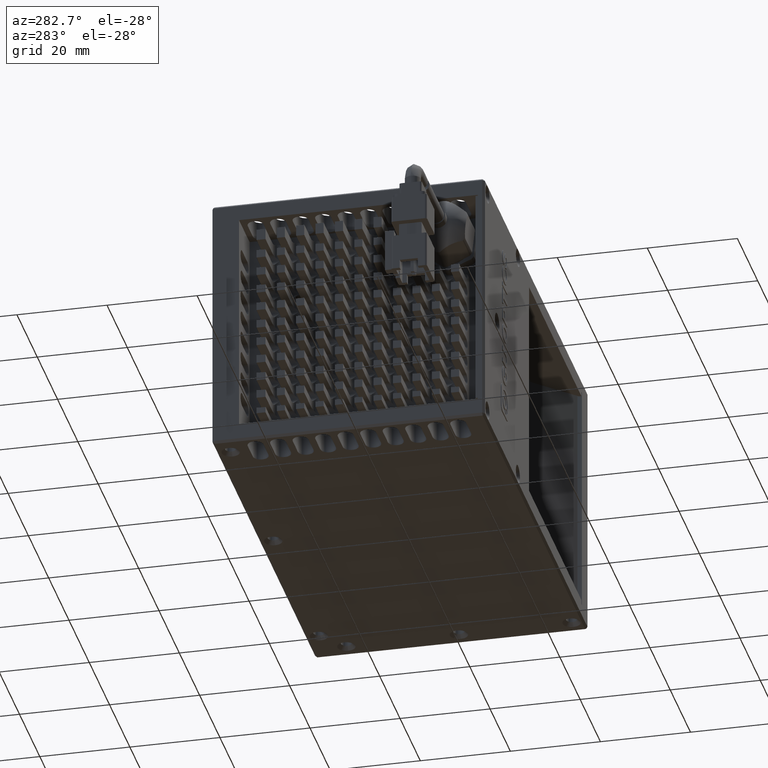
[diagram: clean part render]
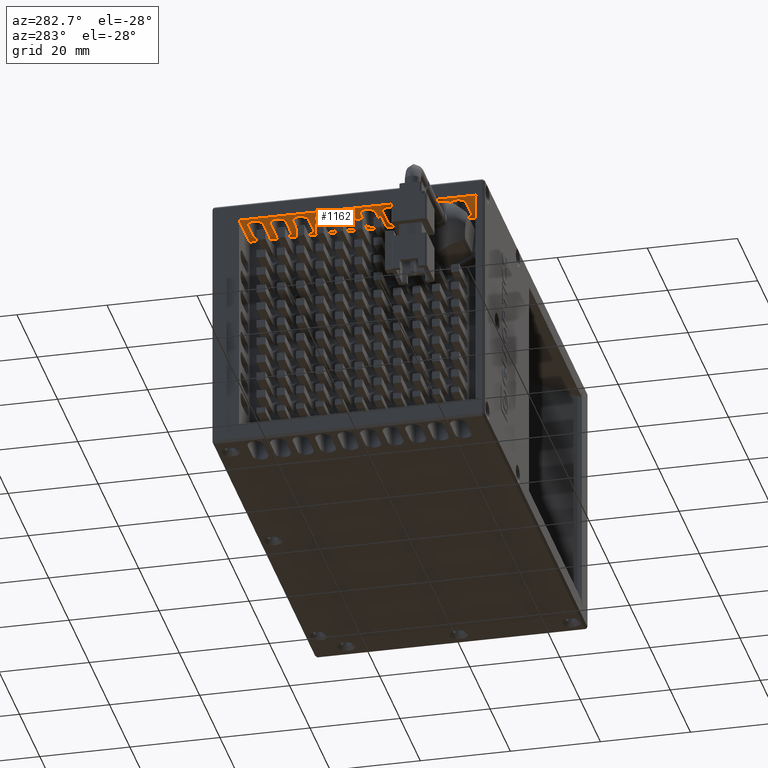
[diagram: same view with one face highlighted and labeled with its STEP entity id]
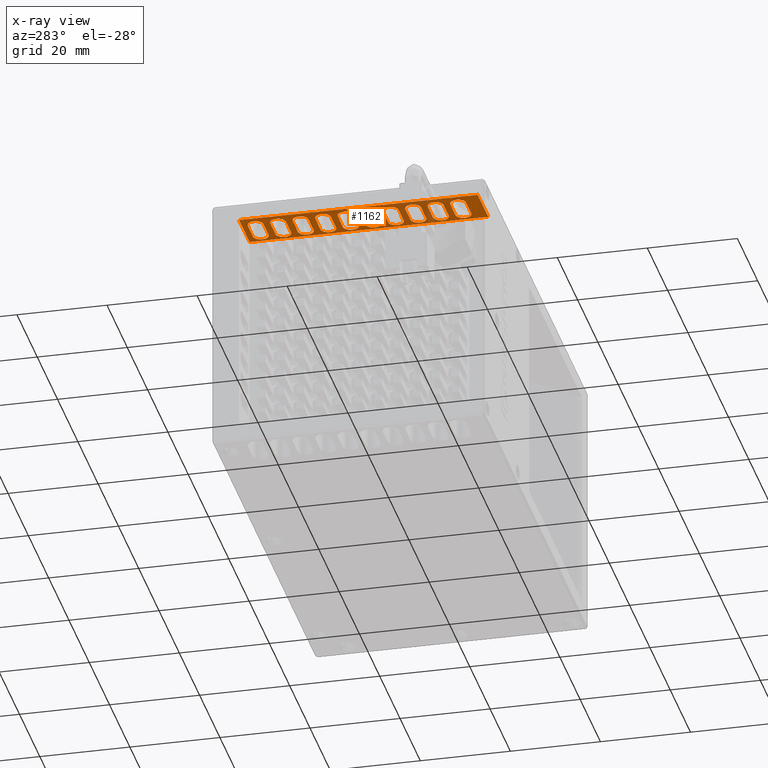
[diagram: x-ray of the same camera — body ghosted, the highlighted face saturated]
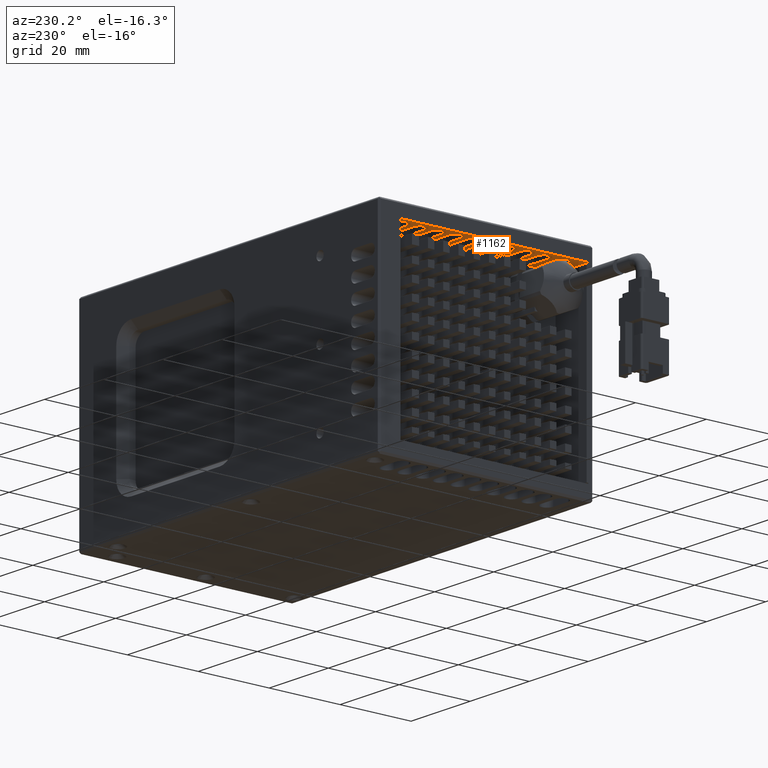
[diagram: same view with one face highlighted and labeled with its STEP entity id]
A machine part, auxiliary view. The second image highlights one B-rep face of the part: STEP entity #1162.
The next image is the same camera in x-ray: the body ghosted, the highlighted face saturated — about 18% of this face is hidden behind the body in this view.
A second angle (auxiliary view) of the same face is appended — the face is thin or edge-on in the first view.
In plain terms, the highlighted planar face has unit normal (0, 0, -1).
Its self-contained STEP definition (entity closure, byte-faithful):
#92 = VECTOR ( 'NONE', #55224, 1000.000000000000000 ) ;
#162 = EDGE_CURVE ( 'NONE', #46251, #3177, #65039, .T. ) ;
#556 = DIRECTION ( 'NONE',  ( 1.000000000000000000, 0.0000000000000000000, 0.0000000000000000000 ) ) ;
#750 = CARTESIAN_POINT ( 'NONE',  ( -60.57424922391150800, 3.775993330902633400, 54.00000000000955700 ) ) ;
#755 = DIRECTION ( 'NONE',  ( -0.0000000000000000000, -0.0000000000000000000, 1.000000000000000000 ) ) ;
#770 = EDGE_CURVE ( 'NONE', #33114, #41457, #68127, .T. ) ;
#849 = ORIENTED_EDGE ( 'NONE', *, *, #47016, .T. ) ;
#952 = DIRECTION ( 'NONE',  ( -0.0000000000000000000, -0.0000000000000000000, 1.000000000000000000 ) ) ;
#1162 = ADVANCED_FACE ( 'NONE', ( #10083, #49115, #6793, #61521, #47455, #33357, #19171, #5116, #59870, #45797, #31670 ), #15006, .T. ) ;
#1447 = ORIENTED_EDGE ( 'NONE', *, *, #60256, .T. ) ;
#1538 = LINE ( 'NONE', #41669, #13909 ) ;
#1772 = ORIENTED_EDGE ( 'NONE', *, *, #13327, .T. ) ;
#1782 = VECTOR ( 'NONE', #1951, 1000.000000000000000 ) ;
#1816 = DIRECTION ( 'NONE',  ( 1.000000000000000000, 0.0000000000000000000, 0.0000000000000000000 ) ) ;
#1896 = ORIENTED_EDGE ( 'NONE', *, *, #42364, .T. ) ;
#1951 = DIRECTION ( 'NONE',  ( -1.000000000000000000, -0.0000000000000000000, 0.0000000000000000000 ) ) ;
#2141 = CARTESIAN_POINT ( 'NONE',  ( -60.57424922391150800, 23.77599333090263700, 54.00000000000955700 ) ) ;
#2358 = VERTEX_POINT ( 'NONE', #63997 ) ;
#2552 = AXIS2_PLACEMENT_3D ( 'NONE', #2141, #39285, #7494 ) ;
#2744 = CIRCLE ( 'NONE', #25119, 1.750000000000001600 ) ;
#2894 = CARTESIAN_POINT ( 'NONE',  ( -60.57424922391149400, -2.974006669097364800, 54.00000000000955700 ) ) ;
#2903 = EDGE_CURVE ( 'NONE', #13150, #64976, #50575, .T. ) ;
#3177 = VERTEX_POINT ( 'NONE', #2894 ) ;
#3191 = DIRECTION ( 'NONE',  ( 1.000000000000000000, 0.0000000000000000000, 0.0000000000000000000 ) ) ;
#3242 = ORIENTED_EDGE ( 'NONE', *, *, #2903, .T. ) ;
#3325 = ORIENTED_EDGE ( 'NONE', *, *, #48502, .T. ) ;
#3752 = DIRECTION ( 'NONE',  ( -0.0000000000000000000, -0.0000000000000000000, 1.000000000000000000 ) ) ;
#3849 = DIRECTION ( 'NONE',  ( 1.000000000000000000, 0.0000000000000000000, 0.0000000000000000000 ) ) ;
#4044 = VERTEX_POINT ( 'NONE', #45313 ) ;
#4165 = VERTEX_POINT ( 'NONE', #4249 ) ;
#4176 = ORIENTED_EDGE ( 'NONE', *, *, #58352, .T. ) ;
#4249 = CARTESIAN_POINT ( 'NONE',  ( -65.57424922391152200, 30.52599333090263700, 54.00000000000955700 ) ) ;
#4355 = CARTESIAN_POINT ( 'NONE',  ( -65.57424922391152200, 28.77599333090263700, 54.00000000000955700 ) ) ;
#4575 = CARTESIAN_POINT ( 'NONE',  ( -65.57424922391152200, 2.025993330902632100, 54.00000000000955700 ) ) ;
#4594 = DIRECTION ( 'NONE',  ( 0.0000000000000000000, 0.0000000000000000000, -1.000000000000000000 ) ) ;
#4715 = DIRECTION ( 'NONE',  ( -0.0000000000000000000, -0.0000000000000000000, 1.000000000000000000 ) ) ;
#4882 = VERTEX_POINT ( 'NONE', #68527 ) ;
#4942 = DIRECTION ( 'NONE',  ( -0.0000000000000000000, -0.0000000000000000000, 1.000000000000000000 ) ) ;
#5116 = FACE_BOUND ( 'NONE', #5604, .T. ) ;
#5208 = VECTOR ( 'NONE', #46472, 1000.000000000000000 ) ;
#5211 = LINE ( 'NONE', #48579, #45878 ) ;
#5286 = CARTESIAN_POINT ( 'NONE',  ( -60.57424922391150800, 25.52599333090264000, 54.00000000000955700 ) ) ;
#5307 = VERTEX_POINT ( 'NONE', #51940 ) ;
#5445 = VECTOR ( 'NONE', #30094, 1000.000000000000000 ) ;
#5604 = EDGE_LOOP ( 'NONE', ( #24495, #51514, #14031, #27852, #51115 ) ) ;
#5738 = EDGE_CURVE ( 'NONE', #24772, #67314, #60183, .T. ) ;
#5892 = CARTESIAN_POINT ( 'NONE',  ( -65.57424922391152200, 8.775993330902631200, 54.00000000000955700 ) ) ;
#6061 = VECTOR ( 'NONE', #37626, 1000.000000000000000 ) ;
#6085 = DIRECTION ( 'NONE',  ( 1.000000000000000000, 0.0000000000000000000, 0.0000000000000000000 ) ) ;
#6143 = CARTESIAN_POINT ( 'NONE',  ( -60.57424922391150800, 17.02599333090263700, 54.00000000000955700 ) ) ;
#6376 = DIRECTION ( 'NONE',  ( 1.000000000000000000, 0.0000000000000000000, 0.0000000000000000000 ) ) ;
#6406 = CARTESIAN_POINT ( 'NONE',  ( -65.57424922391152200, 13.77599333090263500, 54.00000000000955700 ) ) ;
#6421 = CARTESIAN_POINT ( 'NONE',  ( -60.57424922391149400, -1.224006669097364100, 54.00000000000955700 ) ) ;
#6452 = DIRECTION ( 'NONE',  ( -0.0000000000000000000, -0.0000000000000000000, 1.000000000000000000 ) ) ;
#6607 = EDGE_CURVE ( 'NONE', #15134, #62806, #9309, .T. ) ;
#6793 = FACE_BOUND ( 'NONE', #46716, .T. ) ;
#6845 = VERTEX_POINT ( 'NONE', #33925 ) ;
#7494 = DIRECTION ( 'NONE',  ( 1.000000000000000000, 0.0000000000000000000, 0.0000000000000000000 ) ) ;
#7506 = DIRECTION ( 'NONE',  ( -0.0000000000000000000, -0.0000000000000000000, 1.000000000000000000 ) ) ;
#7588 = EDGE_CURVE ( 'NONE', #4882, #31464, #43205, .T. ) ;
#7693 = LINE ( 'NONE', #63781, #6061 ) ;
#7844 = VERTEX_POINT ( 'NONE', #15259 ) ;
#8079 = ORIENTED_EDGE ( 'NONE', *, *, #21309, .T. ) ;
#8505 = VERTEX_POINT ( 'NONE', #11733 ) ;
#8855 = DIRECTION ( 'NONE',  ( -0.0000000000000000000, -0.0000000000000000000, 1.000000000000000000 ) ) ;
#9309 = CIRCLE ( 'NONE', #51995, 1.750000000000001600 ) ;
#9547 = CARTESIAN_POINT ( 'NONE',  ( -60.57424922391150800, 27.02599333090263300, 54.00000000000955700 ) ) ;
#9590 = VERTEX_POINT ( 'NONE', #28803 ) ;
#9629 = CARTESIAN_POINT ( 'NONE',  ( -65.57424922391152200, 3.775993330902633400, 54.00000000000955700 ) ) ;
#9638 = DIRECTION ( 'NONE',  ( 1.000000000000000000, 0.0000000000000000000, 0.0000000000000000000 ) ) ;
#9748 = VERTEX_POINT ( 'NONE', #67477 ) ;
#9877 = VERTEX_POINT ( 'NONE', #53822 ) ;
#9892 = ORIENTED_EDGE ( 'NONE', *, *, #37265, .T. ) ;
#9993 = ORIENTED_EDGE ( 'NONE', *, *, #5738, .T. ) ;
#10083 = FACE_OUTER_BOUND ( 'NONE', #28876, .T. ) ;
#10182 = VERTEX_POINT ( 'NONE', #24403 ) ;
#10543 = AXIS2_PLACEMENT_3D ( 'NONE', #66684, #34982, #3191 ) ;
#10604 = DIRECTION ( 'NONE',  ( -1.000000000000000000, -0.0000000000000000000, 0.0000000000000000000 ) ) ;
#10768 = AXIS2_PLACEMENT_3D ( 'NONE', #28780, #65860, #34152 ) ;
#11105 = VERTEX_POINT ( 'NONE', #60944 ) ;
#11179 = AXIS2_PLACEMENT_3D ( 'NONE', #52334, #20526, #57642 ) ;
#11209 = DIRECTION ( 'NONE',  ( 1.000000000000000000, 0.0000000000000000000, 0.0000000000000000000 ) ) ;
#11383 = VERTEX_POINT ( 'NONE', #67325 ) ;
#11420 = CIRCLE ( 'NONE', #45217, 1.750000000000001600 ) ;
#11500 = AXIS2_PLACEMENT_3D ( 'NONE', #64073, #32374, #556 ) ;
#11534 = CIRCLE ( 'NONE', #2552, 1.750000000000001600 ) ;
#11570 = VERTEX_POINT ( 'NONE', #32852 ) ;
#11619 = EDGE_CURVE ( 'NONE', #7844, #6845, #37676, .T. ) ;
#11733 = CARTESIAN_POINT ( 'NONE',  ( -60.57424922391149400, 0.5259933309026392200, 54.00000000000955700 ) ) ;
#11748 = DIRECTION ( 'NONE',  ( 1.000000000000000000, 0.0000000000000000000, 0.0000000000000000000 ) ) ;
#11835 = DIRECTION ( 'NONE',  ( -0.0000000000000000000, -0.0000000000000000000, 1.000000000000000000 ) ) ;
#12061 = VERTEX_POINT ( 'NONE', #16926 ) ;
#12164 = VECTOR ( 'NONE', #51897, 1000.000000000000000 ) ;
#12494 = CARTESIAN_POINT ( 'NONE',  ( -60.57424922391152200, 42.02599333090263700, 54.00000000000955700 ) ) ;
#12497 = DIRECTION ( 'NONE',  ( 1.000000000000000000, 0.0000000000000000000, 0.0000000000000000000 ) ) ;
#12558 = CIRCLE ( 'NONE', #48101, 1.750000000000001600 ) ;
#12652 = DIRECTION ( 'NONE',  ( 1.000000000000000000, 0.0000000000000000000, 0.0000000000000000000 ) ) ;
#12659 = VERTEX_POINT ( 'NONE', #43810 ) ;
#12810 = DIRECTION ( 'NONE',  ( -0.0000000000000000000, -0.0000000000000000000, 1.000000000000000000 ) ) ;
#12877 = CIRCLE ( 'NONE', #65685, 1.750000000000001600 ) ;
#13150 = VERTEX_POINT ( 'NONE', #53403 ) ;
#13155 = CARTESIAN_POINT ( 'NONE',  ( -60.57424922391150800, 10.52599333090263300, 54.00000000000955700 ) ) ;
#13327 = EDGE_CURVE ( 'NONE', #14234, #15134, #22971, .T. ) ;
#13418 = AXIS2_PLACEMENT_3D ( 'NONE', #6406, #44455, #12652 ) ;
#13465 = VECTOR ( 'NONE', #26702, 1000.000000000000000 ) ;
#13480 = CARTESIAN_POINT ( 'NONE',  ( -65.57424922391152200, 20.52599333090263300, 54.00000000000955700 ) ) ;
#13557 = VECTOR ( 'NONE', #49598, 1000.000000000000000 ) ;
#13666 = CARTESIAN_POINT ( 'NONE',  ( -65.57424922391152200, 33.77599333090262900, 54.00000000000955700 ) ) ;
#13812 = EDGE_LOOP ( 'NONE', ( #9892, #49904, #23942, #8079, #35286 ) ) ;
#13909 = VECTOR ( 'NONE', #25837, 1000.000000000000000 ) ;
#14031 = ORIENTED_EDGE ( 'NONE', *, *, #11619, .T. ) ;
#14134 = CIRCLE ( 'NONE', #13418, 1.750000000000001600 ) ;
#14234 = VERTEX_POINT ( 'NONE', #13155 ) ;
#14313 = AXIS2_PLACEMENT_3D ( 'NONE', #17408, #54511, #22720 ) ;
#14363 = EDGE_CURVE ( 'NONE', #4165, #16961, #12558, .T. ) ;
#14533 = ORIENTED_EDGE ( 'NONE', *, *, #20422, .T. ) ;
#14613 = EDGE_CURVE ( 'NONE', #59057, #29394, #14134, .T. ) ;
#14632 = CARTESIAN_POINT ( 'NONE',  ( -60.57424922391150800, 8.775993330902631200, 54.00000000000955700 ) ) ;
#14752 = ORIENTED_EDGE ( 'NONE', *, *, #34218, .T. ) ;
#14955 = DIRECTION ( 'NONE',  ( 1.000000000000000000, 0.0000000000000000000, 0.0000000000000000000 ) ) ;
#15006 = PLANE ( 'NONE',  #66573 ) ;
#15013 = VERTEX_POINT ( 'NONE', #42783 ) ;
#15050 = VERTEX_POINT ( 'NONE', #27454 ) ;
#15134 = VERTEX_POINT ( 'NONE', #33478 ) ;
#15259 = CARTESIAN_POINT ( 'NONE',  ( -60.57424922391150800, 12.02599333090263300, 54.00000000000955700 ) ) ;
#15271 = VERTEX_POINT ( 'NONE', #13480 ) ;
#15393 = ORIENTED_EDGE ( 'NONE', *, *, #66531, .T. ) ;
#15704 = ORIENTED_EDGE ( 'NONE', *, *, #48024, .T. ) ;
#16078 = CARTESIAN_POINT ( 'NONE',  ( -60.57424922391150800, 25.52599333090264000, 54.00000000000955700 ) ) ;
#16281 = ORIENTED_EDGE ( 'NONE', *, *, #64159, .T. ) ;
#16314 = ORIENTED_EDGE ( 'NONE', *, *, #36057, .T. ) ;
#16559 = EDGE_CURVE ( 'NONE', #11105, #43934, #66894, .T. ) ;
#16662 = LINE ( 'NONE', #56751, #30805 ) ;
#16926 = CARTESIAN_POINT ( 'NONE',  ( -60.57424922391150800, 27.02599333090263300, 54.00000000000955700 ) ) ;
#16961 = VERTEX_POINT ( 'NONE', #30088 ) ;
#17066 = DIRECTION ( 'NONE',  ( 1.000000000000000000, 0.0000000000000000000, 0.0000000000000000000 ) ) ;
#17365 = VECTOR ( 'NONE', #24979, 1000.000000000000000 ) ;
#17408 = CARTESIAN_POINT ( 'NONE',  ( -65.57424922391152200, 43.77599333090263700, 54.00000000000955700 ) ) ;
#17699 = CARTESIAN_POINT ( 'NONE',  ( -60.57424922391150800, 13.77599333090263500, 54.00000000000955700 ) ) ;
#18104 = EDGE_CURVE ( 'NONE', #10182, #11105, #61542, .T. ) ;
#18134 = CARTESIAN_POINT ( 'NONE',  ( -60.57424922391149400, 0.5259933309026392200, 54.00000000000955700 ) ) ;
#18275 = CARTESIAN_POINT ( 'NONE',  ( -65.57424922391152200, 40.52599333090263700, 54.00000000000955700 ) ) ;
#18366 = VECTOR ( 'NONE', #17066, 1000.000000000000000 ) ;
#18826 = ORIENTED_EDGE ( 'NONE', *, *, #25208, .T. ) ;
#18988 = DIRECTION ( 'NONE',  ( 1.000000000000000000, 0.0000000000000000000, 0.0000000000000000000 ) ) ;
#19171 = FACE_BOUND ( 'NONE', #13812, .T. ) ;
#19633 = DIRECTION ( 'NONE',  ( 1.000000000000000000, 1.224646799147353200E-016, 0.0000000000000000000 ) ) ;
#19671 = CIRCLE ( 'NONE', #41480, 1.750000000000001600 ) ;
#19980 = DIRECTION ( 'NONE',  ( 1.000000000000000000, 0.0000000000000000000, 0.0000000000000000000 ) ) ;
#20107 = EDGE_CURVE ( 'NONE', #15013, #13150, #39776, .T. ) ;
#20110 = CARTESIAN_POINT ( 'NONE',  ( -60.57424922391152200, 32.02599333090262900, 54.00000000000955700 ) ) ;
#20422 = EDGE_CURVE ( 'NONE', #16961, #12061, #33811, .T. ) ;
#20526 = DIRECTION ( 'NONE',  ( -0.0000000000000000000, -0.0000000000000000000, 1.000000000000000000 ) ) ;
#20601 = CARTESIAN_POINT ( 'NONE',  ( -60.57424922391152200, 40.52599333090263700, 54.00000000000955700 ) ) ;
#21309 = EDGE_CURVE ( 'NONE', #37535, #15050, #36822, .T. ) ;
#21341 = CARTESIAN_POINT ( 'NONE',  ( -60.57424922391152200, 33.77599333090262900, 54.00000000000955700 ) ) ;
#22022 = CARTESIAN_POINT ( 'NONE',  ( -58.82424922391150800, 28.77599333090263700, 54.00000000000955700 ) ) ;
#22388 = VECTOR ( 'NONE', #67641, 1000.000000000000000 ) ;
#22682 = VECTOR ( 'NONE', #46634, 1000.000000000000000 ) ;
#22720 = DIRECTION ( 'NONE',  ( 1.000000000000000000, 0.0000000000000000000, 0.0000000000000000000 ) ) ;
#22871 = EDGE_CURVE ( 'NONE', #44678, #29938, #63039, .T. ) ;
#22971 = LINE ( 'NONE', #60346, #35467 ) ;
#23025 = DIRECTION ( 'NONE',  ( 1.000000000000000000, 0.0000000000000000000, 0.0000000000000000000 ) ) ;
#23453 = CARTESIAN_POINT ( 'NONE',  ( -60.57424922391152200, 45.52599333090263700, 54.00000000000955700 ) ) ;
#23719 = AXIS2_PLACEMENT_3D ( 'NONE', #6421, #43558, #11748 ) ;
#23942 = ORIENTED_EDGE ( 'NONE', *, *, #56274, .T. ) ;
#24403 = CARTESIAN_POINT ( 'NONE',  ( -65.57424922391152200, 35.52599333090262900, 54.00000000000955700 ) ) ;
#24464 = CARTESIAN_POINT ( 'NONE',  ( -60.57424922391150800, 30.52599333090263700, 54.00000000000955700 ) ) ;
#24495 = ORIENTED_EDGE ( 'NONE', *, *, #14613, .T. ) ;
#24719 = CARTESIAN_POINT ( 'NONE',  ( -60.57424922391152200, 37.02599333090262900, 54.00000000000955700 ) ) ;
#24772 = VERTEX_POINT ( 'NONE', #60384 ) ;
#24979 = DIRECTION ( 'NONE',  ( -1.000000000000000000, -0.0000000000000000000, 0.0000000000000000000 ) ) ;
#24994 = LINE ( 'NONE', #20601, #51558 ) ;
#25119 = AXIS2_PLACEMENT_3D ( 'NONE', #44610, #12810, #49912 ) ;
#25156 = AXIS2_PLACEMENT_3D ( 'NONE', #750, #37863, #6085 ) ;
#25208 = EDGE_CURVE ( 'NONE', #4044, #55205, #2744, .T. ) ;
#25474 = EDGE_LOOP ( 'NONE', ( #40541, #14533, #16281, #64113, #4176 ) ) ;
#25504 = EDGE_CURVE ( 'NONE', #55205, #68774, #24994, .T. ) ;
#25747 = DIRECTION ( 'NONE',  ( -1.000000000000000000, -0.0000000000000000000, 0.0000000000000000000 ) ) ;
#25837 = DIRECTION ( 'NONE',  ( -1.000000000000000000, -0.0000000000000000000, 0.0000000000000000000 ) ) ;
#25945 = ORIENTED_EDGE ( 'NONE', *, *, #62916, .T. ) ;
#25968 = VECTOR ( 'NONE', #12497, 1000.000000000000000 ) ;
#26686 = CARTESIAN_POINT ( 'NONE',  ( -65.57424922391152200, 17.02599333090263700, 54.00000000000955700 ) ) ;
#26702 = DIRECTION ( 'NONE',  ( -1.000000000000000000, -0.0000000000000000000, 0.0000000000000000000 ) ) ;
#26733 = DIRECTION ( 'NONE',  ( 1.000000000000000000, 0.0000000000000000000, 0.0000000000000000000 ) ) ;
#26754 = CIRCLE ( 'NONE', #11179, 1.750000000000001600 ) ;
#26986 = CIRCLE ( 'NONE', #25156, 1.750000000000001600 ) ;
#27454 = CARTESIAN_POINT ( 'NONE',  ( -60.57424922391150800, 20.52599333090263300, 54.00000000000955700 ) ) ;
#27699 = LINE ( 'NONE', #12494, #13557 ) ;
#27852 = ORIENTED_EDGE ( 'NONE', *, *, #65926, .T. ) ;
#28020 = DIRECTION ( 'NONE',  ( -0.0000000000000000000, -0.0000000000000000000, 1.000000000000000000 ) ) ;
#28063 = CIRCLE ( 'NONE', #10543, 1.750000000000001600 ) ;
#28780 = CARTESIAN_POINT ( 'NONE',  ( -60.57424922391150800, 3.775993330902633400, 54.00000000000955700 ) ) ;
#28803 = CARTESIAN_POINT ( 'NONE',  ( -58.82424922391150800, 23.77599333090263700, 54.00000000000955700 ) ) ;
#28876 = EDGE_LOOP ( 'NONE', ( #52084, #62544, #61078, #3242 ) ) ;
#29163 = EDGE_LOOP ( 'NONE', ( #47306, #58677, #43570, #45280, #849 ) ) ;
#29394 = VERTEX_POINT ( 'NONE', #59563 ) ;
#29938 = VERTEX_POINT ( 'NONE', #53684 ) ;
#29979 = VERTEX_POINT ( 'NONE', #33106 ) ;
#30088 = CARTESIAN_POINT ( 'NONE',  ( -65.57424922391152200, 27.02599333090263300, 54.00000000000955700 ) ) ;
#30094 = DIRECTION ( 'NONE',  ( 1.000000000000000000, 0.0000000000000000000, 0.0000000000000000000 ) ) ;
#30598 = CARTESIAN_POINT ( 'NONE',  ( -60.57424922391150800, 30.52599333090263700, 54.00000000000955700 ) ) ;
#30692 = DIRECTION ( 'NONE',  ( 1.000000000000000000, 0.0000000000000000000, 0.0000000000000000000 ) ) ;
#30805 = VECTOR ( 'NONE', #19633, 1000.000000000000000 ) ;
#30956 = EDGE_CURVE ( 'NONE', #62208, #46251, #54952, .T. ) ;
#31120 = ORIENTED_EDGE ( 'NONE', *, *, #37068, .T. ) ;
#31159 = AXIS2_PLACEMENT_3D ( 'NONE', #43640, #11835, #48950 ) ;
#31301 = LINE ( 'NONE', #43828, #57802 ) ;
#31464 = VERTEX_POINT ( 'NONE', #31618 ) ;
#31471 = DIRECTION ( 'NONE',  ( -0.0000000000000000000, -0.0000000000000000000, 1.000000000000000000 ) ) ;
#31618 = CARTESIAN_POINT ( 'NONE',  ( -58.82424922391150800, 3.775993330902633400, 54.00000000000955700 ) ) ;
#31670 = FACE_BOUND ( 'NONE', #34639, .T. ) ;
#32184 = EDGE_CURVE ( 'NONE', #50329, #4882, #31301, .T. ) ;
#32198 = ORIENTED_EDGE ( 'NONE', *, *, #25504, .T. ) ;
#32344 = CIRCLE ( 'NONE', #32573, 1.750000000000001600 ) ;
#32374 = DIRECTION ( 'NONE',  ( -0.0000000000000000000, -0.0000000000000000000, 1.000000000000000000 ) ) ;
#32552 = CARTESIAN_POINT ( 'NONE',  ( -60.57424922391150800, 18.77599333090263300, 54.00000000000955700 ) ) ;
#32571 = CARTESIAN_POINT ( 'NONE',  ( -60.57424922391150800, 15.52599333090263700, 54.00000000000955700 ) ) ;
#32573 = AXIS2_PLACEMENT_3D ( 'NONE', #65297, #33564, #1816 ) ;
#32720 = CARTESIAN_POINT ( 'NONE',  ( -60.57424922391150800, 28.77599333090263700, 54.00000000000955700 ) ) ;
#32852 = CARTESIAN_POINT ( 'NONE',  ( -60.57424922391150800, 5.525993330902634800, 54.00000000000955700 ) ) ;
#33041 = CARTESIAN_POINT ( 'NONE',  ( -60.57424922391152200, 32.02599333090262900, 54.00000000000955700 ) ) ;
#33072 = DIRECTION ( 'NONE',  ( 0.0000000000000000000, 1.000000000000000000, 0.0000000000000000000 ) ) ;
#33106 = CARTESIAN_POINT ( 'NONE',  ( -58.82424922391150800, 8.775993330902631200, 54.00000000000955700 ) ) ;
#33114 = VERTEX_POINT ( 'NONE', #22022 ) ;
#33357 = FACE_BOUND ( 'NONE', #47112, .T. ) ;
#33478 = CARTESIAN_POINT ( 'NONE',  ( -65.57424922391152200, 10.52599333090263300, 54.00000000000955700 ) ) ;
#33564 = DIRECTION ( 'NONE',  ( -0.0000000000000000000, -0.0000000000000000000, 1.000000000000000000 ) ) ;
#33712 = ORIENTED_EDGE ( 'NONE', *, *, #37891, .T. ) ;
#33786 = EDGE_CURVE ( 'NONE', #64976, #61208, #7693, .T. ) ;
#33811 = LINE ( 'NONE', #9547, #47927 ) ;
#33925 = CARTESIAN_POINT ( 'NONE',  ( -58.82424922391150800, 13.77599333090263500, 54.00000000000955700 ) ) ;
#34051 = ORIENTED_EDGE ( 'NONE', *, *, #67221, .T. ) ;
#34152 = DIRECTION ( 'NONE',  ( 1.000000000000000000, 0.0000000000000000000, 0.0000000000000000000 ) ) ;
#34197 = LINE ( 'NONE', #43576, #18366 ) ;
#34200 = CIRCLE ( 'NONE', #60209, 1.750000000000001600 ) ;
#34218 = EDGE_CURVE ( 'NONE', #5307, #9590, #26754, .T. ) ;
#34639 = EDGE_LOOP ( 'NONE', ( #48875, #51831, #60308, #1447, #59097 ) ) ;
#34982 = DIRECTION ( 'NONE',  ( -0.0000000000000000000, -0.0000000000000000000, 1.000000000000000000 ) ) ;
#35286 = ORIENTED_EDGE ( 'NONE', *, *, #44661, .T. ) ;
#35467 = VECTOR ( 'NONE', #65680, 1000.000000000000000 ) ;
#35508 = ORIENTED_EDGE ( 'NONE', *, *, #6607, .T. ) ;
#35551 = CARTESIAN_POINT ( 'NONE',  ( -60.57424922391152200, 38.77599333090265100, 54.00000000000955700 ) ) ;
#35647 = DIRECTION ( 'NONE',  ( -0.0000000000000000000, -0.0000000000000000000, 1.000000000000000000 ) ) ;
#35701 = EDGE_CURVE ( 'NONE', #29394, #7844, #66610, .T. ) ;
#36057 = EDGE_CURVE ( 'NONE', #65977, #5307, #34197, .T. ) ;
#36388 = CARTESIAN_POINT ( 'NONE',  ( 33.42575077608847800, 52.77699333090263400, 54.00000000000955700 ) ) ;
#36487 = CARTESIAN_POINT ( 'NONE',  ( -65.57424922391152200, 23.77599333090263700, 54.00000000000955700 ) ) ;
#36622 = CARTESIAN_POINT ( 'NONE',  ( -65.57424922391150800, 0.5259933309026375600, 54.00000000000955700 ) ) ;
#36719 = CARTESIAN_POINT ( 'NONE',  ( -60.57424922391152200, 33.77599333090262900, 54.00000000000955700 ) ) ;
#36822 = CIRCLE ( 'NONE', #61160, 1.750000000000001600 ) ;
#37068 = EDGE_CURVE ( 'NONE', #11383, #29979, #11420, .T. ) ;
#37244 = CARTESIAN_POINT ( 'NONE',  ( -65.57424922391152200, 7.025993330902629500, 54.00000000000955700 ) ) ;
#37265 = EDGE_CURVE ( 'NONE', #15271, #45870, #28063, .T. ) ;
#37530 = CARTESIAN_POINT ( 'NONE',  ( 33.42575077608847800, 46.77599333090264400, 54.00000000000955700 ) ) ;
#37535 = VERTEX_POINT ( 'NONE', #47910 ) ;
#37620 = CARTESIAN_POINT ( 'NONE',  ( -58.17424922391150900, -6.223006669097360400, 54.00000000000955700 ) ) ;
#37626 = DIRECTION ( 'NONE',  ( -0.0000000000000000000, -1.000000000000000000, -0.0000000000000000000 ) ) ;
#37676 = CIRCLE ( 'NONE', #61330, 1.750000000000001600 ) ;
#37863 = DIRECTION ( 'NONE',  ( -0.0000000000000000000, -0.0000000000000000000, 1.000000000000000000 ) ) ;
#37869 = DIRECTION ( 'NONE',  ( 1.000000000000000000, 0.0000000000000000000, 0.0000000000000000000 ) ) ;
#37891 = EDGE_CURVE ( 'NONE', #9877, #65977, #12877, .T. ) ;
#38058 = DIRECTION ( 'NONE',  ( 1.000000000000000000, 0.0000000000000000000, 0.0000000000000000000 ) ) ;
#38243 = CARTESIAN_POINT ( 'NONE',  ( -65.57424922391152200, 38.77599333090265100, 54.00000000000955700 ) ) ;
#38828 = CIRCLE ( 'NONE', #64072, 1.750000000000001600 ) ;
#39219 = AXIS2_PLACEMENT_3D ( 'NONE', #35551, #3752, #40899 ) ;
#39285 = DIRECTION ( 'NONE',  ( -0.0000000000000000000, -0.0000000000000000000, 1.000000000000000000 ) ) ;
#39292 = CARTESIAN_POINT ( 'NONE',  ( -60.57424922391150800, 28.77599333090263700, 54.00000000000955700 ) ) ;
#39471 = EDGE_CURVE ( 'NONE', #67314, #4044, #57826, .T. ) ;
#39727 = ORIENTED_EDGE ( 'NONE', *, *, #55964, .T. ) ;
#39776 = LINE ( 'NONE', #54134, #64612 ) ;
#39798 = VECTOR ( 'NONE', #10604, 1000.000000000000000 ) ;
#40541 = ORIENTED_EDGE ( 'NONE', *, *, #14363, .T. ) ;
#40684 = CARTESIAN_POINT ( 'NONE',  ( -60.57424922391150800, 13.77599333090263500, 54.00000000000955700 ) ) ;
#40899 = DIRECTION ( 'NONE',  ( 1.000000000000000000, 0.0000000000000000000, 0.0000000000000000000 ) ) ;
#41093 = CARTESIAN_POINT ( 'NONE',  ( -65.57424922391152200, 5.525993330902634800, 54.00000000000955700 ) ) ;
#41177 = AXIS2_PLACEMENT_3D ( 'NONE', #67342, #35647, #3849 ) ;
#41310 = CARTESIAN_POINT ( 'NONE',  ( -60.57424922391149400, -2.974006669097364800, 54.00000000000955700 ) ) ;
#41359 = CIRCLE ( 'NONE', #65381, 1.750000000000001600 ) ;
#41457 = VERTEX_POINT ( 'NONE', #24464 ) ;
#41474 = DIRECTION ( 'NONE',  ( -0.0000000000000000000, -0.0000000000000000000, 1.000000000000000000 ) ) ;
#41480 = AXIS2_PLACEMENT_3D ( 'NONE', #39292, #7506, #44621 ) ;
#41669 = CARTESIAN_POINT ( 'NONE',  ( -60.57424922391152200, 35.52599333090262900, 54.00000000000955700 ) ) ;
#41751 = DIRECTION ( 'NONE',  ( -1.000000000000000000, 0.0000000000000000000, -0.0000000000000000000 ) ) ;
#41790 = ORIENTED_EDGE ( 'NONE', *, *, #61366, .T. ) ;
#41849 = DIRECTION ( 'NONE',  ( 1.000000000000000000, 0.0000000000000000000, 0.0000000000000000000 ) ) ;
#41982 = CARTESIAN_POINT ( 'NONE',  ( -58.17424922391150900, 46.77599333090264400, 54.00000000000955700 ) ) ;
#42041 = EDGE_LOOP ( 'NONE', ( #58356, #56875, #3325, #52405, #15704 ) ) ;
#42064 = DIRECTION ( 'NONE',  ( 1.000000000000000000, 0.0000000000000000000, 0.0000000000000000000 ) ) ;
#42301 = VERTEX_POINT ( 'NONE', #32571 ) ;
#42364 = EDGE_CURVE ( 'NONE', #2358, #62372, #53572, .T. ) ;
#42383 = VECTOR ( 'NONE', #60040, 1000.000000000000000 ) ;
#42441 = LINE ( 'NONE', #18134, #1782 ) ;
#42783 = CARTESIAN_POINT ( 'NONE',  ( -68.57424922391153600, -6.223006669097360400, 54.00000000000955700 ) ) ;
#42860 = DIRECTION ( 'NONE',  ( 1.000000000000000000, -0.0000000000000000000, 0.0000000000000000000 ) ) ;
#43026 = DIRECTION ( 'NONE',  ( -0.0000000000000000000, -0.0000000000000000000, 1.000000000000000000 ) ) ;
#43205 = CIRCLE ( 'NONE', #10768, 1.750000000000001600 ) ;
#43558 = DIRECTION ( 'NONE',  ( -0.0000000000000000000, -0.0000000000000000000, 1.000000000000000000 ) ) ;
#43570 = ORIENTED_EDGE ( 'NONE', *, *, #7588, .T. ) ;
#43576 = CARTESIAN_POINT ( 'NONE',  ( -60.57424922391150800, 22.02599333090263300, 54.00000000000955700 ) ) ;
#43581 = DIRECTION ( 'NONE',  ( 1.000000000000000000, 0.0000000000000000000, 0.0000000000000000000 ) ) ;
#43640 = CARTESIAN_POINT ( 'NONE',  ( -65.57424922391150800, -1.224006669097364100, 54.00000000000955700 ) ) ;
#43810 = CARTESIAN_POINT ( 'NONE',  ( -58.82424922391152200, 43.77599333090263700, 54.00000000000955700 ) ) ;
#43828 = CARTESIAN_POINT ( 'NONE',  ( -60.57424922391150800, 2.025993330902632100, 54.00000000000955700 ) ) ;
#43934 = VERTEX_POINT ( 'NONE', #33041 ) ;
#44051 = LINE ( 'NONE', #54696, #42383 ) ;
#44455 = DIRECTION ( 'NONE',  ( -0.0000000000000000000, -0.0000000000000000000, 1.000000000000000000 ) ) ;
#44610 = CARTESIAN_POINT ( 'NONE',  ( -60.57424922391152200, 38.77599333090265100, 54.00000000000955700 ) ) ;
#44621 = DIRECTION ( 'NONE',  ( 1.000000000000000000, 0.0000000000000000000, 0.0000000000000000000 ) ) ;
#44661 = EDGE_CURVE ( 'NONE', #15050, #15271, #45633, .T. ) ;
#44678 = VERTEX_POINT ( 'NONE', #56982 ) ;
#44801 = EDGE_CURVE ( 'NONE', #46452, #9877, #53851, .T. ) ;
#45217 = AXIS2_PLACEMENT_3D ( 'NONE', #59788, #28020, #65110 ) ;
#45280 = ORIENTED_EDGE ( 'NONE', *, *, #55409, .T. ) ;
#45313 = CARTESIAN_POINT ( 'NONE',  ( -58.82424922391152200, 38.77599333090265100, 54.00000000000955700 ) ) ;
#45403 = VERTEX_POINT ( 'NONE', #6143 ) ;
#45633 = LINE ( 'NONE', #62107, #17365 ) ;
#45797 = FACE_BOUND ( 'NONE', #29163, .T. ) ;
#45870 = VERTEX_POINT ( 'NONE', #26686 ) ;
#45878 = VECTOR ( 'NONE', #6376, 1000.000000000000000 ) ;
#45996 = DIRECTION ( 'NONE',  ( 1.000000000000000000, 0.0000000000000000000, 0.0000000000000000000 ) ) ;
#46251 = VERTEX_POINT ( 'NONE', #56282 ) ;
#46398 = ORIENTED_EDGE ( 'NONE', *, *, #65420, .T. ) ;
#46404 = ORIENTED_EDGE ( 'NONE', *, *, #48446, .T. ) ;
#46411 = CIRCLE ( 'NONE', #50079, 1.750000000000001600 ) ;
#46452 = VERTEX_POINT ( 'NONE', #16078 ) ;
#46472 = DIRECTION ( 'NONE',  ( 1.000000000000000000, 0.0000000000000000000, 0.0000000000000000000 ) ) ;
#46477 = CARTESIAN_POINT ( 'NONE',  ( -60.57424922391152200, 40.52599333090263700, 54.00000000000955700 ) ) ;
#46634 = DIRECTION ( 'NONE',  ( 1.000000000000000000, 0.0000000000000000000, 0.0000000000000000000 ) ) ;
#46687 = AXIS2_PLACEMENT_3D ( 'NONE', #21341, #58480, #26733 ) ;
#46716 = EDGE_LOOP ( 'NONE', ( #39727, #9993, #66076, #18826, #32198 ) ) ;
#46771 = DIRECTION ( 'NONE',  ( -0.0000000000000000000, -0.0000000000000000000, 1.000000000000000000 ) ) ;
#46872 = VERTEX_POINT ( 'NONE', #61733 ) ;
#47016 = EDGE_CURVE ( 'NONE', #11570, #59455, #68200, .T. ) ;
#47056 = ORIENTED_EDGE ( 'NONE', *, *, #60862, .T. ) ;
#47112 = EDGE_LOOP ( 'NONE', ( #33712, #16314, #14752, #41790, #65153 ) ) ;
#47306 = ORIENTED_EDGE ( 'NONE', *, *, #53441, .T. ) ;
#47423 = EDGE_CURVE ( 'NONE', #15013, #61208, #16662, .T. ) ;
#47455 = FACE_BOUND ( 'NONE', #25474, .T. ) ;
#47637 = CARTESIAN_POINT ( 'NONE',  ( -65.57424922391152200, 15.52599333090263700, 54.00000000000955700 ) ) ;
#47910 = CARTESIAN_POINT ( 'NONE',  ( -58.82424922391150800, 18.77599333090263300, 54.00000000000955700 ) ) ;
#47927 = VECTOR ( 'NONE', #30692, 1000.000000000000000 ) ;
#48024 = EDGE_CURVE ( 'NONE', #29938, #10182, #1538, .T. ) ;
#48101 = AXIS2_PLACEMENT_3D ( 'NONE', #4355, #41474, #9638 ) ;
#48446 = EDGE_CURVE ( 'NONE', #29979, #14234, #41359, .T. ) ;
#48502 = EDGE_CURVE ( 'NONE', #43934, #44678, #38828, .T. ) ;
#48579 = CARTESIAN_POINT ( 'NONE',  ( -60.57424922391150800, 7.025993330902629500, 54.00000000000955700 ) ) ;
#48875 = ORIENTED_EDGE ( 'NONE', *, *, #30956, .T. ) ;
#48950 = DIRECTION ( 'NONE',  ( 1.000000000000000000, 0.0000000000000000000, 0.0000000000000000000 ) ) ;
#49115 = FACE_BOUND ( 'NONE', #62231, .T. ) ;
#49598 = DIRECTION ( 'NONE',  ( 1.000000000000000000, 0.0000000000000000000, 0.0000000000000000000 ) ) ;
#49904 = ORIENTED_EDGE ( 'NONE', *, *, #57823, .T. ) ;
#49912 = DIRECTION ( 'NONE',  ( 1.000000000000000000, 0.0000000000000000000, 0.0000000000000000000 ) ) ;
#50079 = AXIS2_PLACEMENT_3D ( 'NONE', #40684, #8855, #45996 ) ;
#50124 = CIRCLE ( 'NONE', #41177, 1.750000000000001600 ) ;
#50329 = VERTEX_POINT ( 'NONE', #4575 ) ;
#50575 = LINE ( 'NONE', #37530, #64716 ) ;
#50768 = DIRECTION ( 'NONE',  ( -0.0000000000000000000, -0.0000000000000000000, 1.000000000000000000 ) ) ;
#51115 = ORIENTED_EDGE ( 'NONE', *, *, #63528, .T. ) ;
#51241 = EDGE_LOOP ( 'NONE', ( #35508, #25945, #31120, #46404, #1772 ) ) ;
#51514 = ORIENTED_EDGE ( 'NONE', *, *, #35701, .T. ) ;
#51558 = VECTOR ( 'NONE', #25747, 1000.000000000000000 ) ;
#51746 = DIRECTION ( 'NONE',  ( -0.0000000000000000000, -0.0000000000000000000, 1.000000000000000000 ) ) ;
#51831 = ORIENTED_EDGE ( 'NONE', *, *, #162, .T. ) ;
#51897 = DIRECTION ( 'NONE',  ( 1.000000000000000000, 0.0000000000000000000, 0.0000000000000000000 ) ) ;
#51940 = CARTESIAN_POINT ( 'NONE',  ( -60.57424922391150800, 22.02599333090263300, 54.00000000000955700 ) ) ;
#51995 = AXIS2_PLACEMENT_3D ( 'NONE', #5892, #43026, #11209 ) ;
#52084 = ORIENTED_EDGE ( 'NONE', *, *, #33786, .T. ) ;
#52334 = CARTESIAN_POINT ( 'NONE',  ( -60.57424922391150800, 23.77599333090263700, 54.00000000000955700 ) ) ;
#52405 = ORIENTED_EDGE ( 'NONE', *, *, #22871, .T. ) ;
#53403 = CARTESIAN_POINT ( 'NONE',  ( -68.57424922391153600, 46.77599333090264400, 54.00000000000955700 ) ) ;
#53441 = EDGE_CURVE ( 'NONE', #59455, #50329, #56220, .T. ) ;
#53572 = CIRCLE ( 'NONE', #14313, 1.750000000000001600 ) ;
#53684 = CARTESIAN_POINT ( 'NONE',  ( -60.57424922391152200, 35.52599333090262900, 54.00000000000955700 ) ) ;
#53822 = CARTESIAN_POINT ( 'NONE',  ( -65.57424922391152200, 25.52599333090264000, 54.00000000000955700 ) ) ;
#53851 = LINE ( 'NONE', #5286, #39798 ) ;
#54089 = CIRCLE ( 'NONE', #23719, 1.750000000000001600 ) ;
#54134 = CARTESIAN_POINT ( 'NONE',  ( -68.57424922391153600, 64.70549738290139900, 54.00000000000955700 ) ) ;
#54511 = DIRECTION ( 'NONE',  ( -0.0000000000000000000, -0.0000000000000000000, 1.000000000000000000 ) ) ;
#54696 = CARTESIAN_POINT ( 'NONE',  ( -60.57424922391150800, 15.52599333090263700, 54.00000000000955700 ) ) ;
#54803 = DIRECTION ( 'NONE',  ( -0.0000000000000000000, -0.0000000000000000000, 1.000000000000000000 ) ) ;
#54952 = CIRCLE ( 'NONE', #31159, 1.750000000000001600 ) ;
#55205 = VERTEX_POINT ( 'NONE', #46477 ) ;
#55224 = DIRECTION ( 'NONE',  ( -1.000000000000000000, -0.0000000000000000000, 0.0000000000000000000 ) ) ;
#55409 = EDGE_CURVE ( 'NONE', #31464, #11570, #26986, .T. ) ;
#55964 = EDGE_CURVE ( 'NONE', #68774, #24772, #58308, .T. ) ;
#56220 = CIRCLE ( 'NONE', #57864, 1.750000000000001600 ) ;
#56274 = EDGE_CURVE ( 'NONE', #45403, #37535, #34200, .T. ) ;
#56282 = CARTESIAN_POINT ( 'NONE',  ( -65.57424922391150800, -2.974006669097364800, 54.00000000000955700 ) ) ;
#56482 = LINE ( 'NONE', #23453, #92 ) ;
#56751 = CARTESIAN_POINT ( 'NONE',  ( -79.77142641557888700, -6.223006669097361300, 54.00000000000955700 ) ) ;
#56828 = CARTESIAN_POINT ( 'NONE',  ( -65.57424922391152200, 22.02599333090263300, 54.00000000000955700 ) ) ;
#56875 = ORIENTED_EDGE ( 'NONE', *, *, #16559, .T. ) ;
#56982 = CARTESIAN_POINT ( 'NONE',  ( -58.82424922391152200, 33.77599333090262900, 54.00000000000955700 ) ) ;
#57642 = DIRECTION ( 'NONE',  ( 1.000000000000000000, 0.0000000000000000000, 0.0000000000000000000 ) ) ;
#57802 = VECTOR ( 'NONE', #59780, 1000.000000000000000 ) ;
#57823 = EDGE_CURVE ( 'NONE', #45870, #45403, #61608, .T. ) ;
#57826 = CIRCLE ( 'NONE', #39219, 1.750000000000001600 ) ;
#57864 = AXIS2_PLACEMENT_3D ( 'NONE', #9629, #46771, #14955 ) ;
#58308 = CIRCLE ( 'NONE', #62851, 1.750000000000001600 ) ;
#58352 = EDGE_CURVE ( 'NONE', #41457, #4165, #63083, .T. ) ;
#58356 = ORIENTED_EDGE ( 'NONE', *, *, #18104, .T. ) ;
#58480 = DIRECTION ( 'NONE',  ( -0.0000000000000000000, -0.0000000000000000000, 1.000000000000000000 ) ) ;
#58613 = AXIS2_PLACEMENT_3D ( 'NONE', #13666, #50768, #18988 ) ;
#58631 = EDGE_CURVE ( 'NONE', #3177, #46872, #32344, .T. ) ;
#58677 = ORIENTED_EDGE ( 'NONE', *, *, #32184, .T. ) ;
#59057 = VERTEX_POINT ( 'NONE', #47637 ) ;
#59077 = CARTESIAN_POINT ( 'NONE',  ( -65.57424922391152200, 42.02599333090263700, 54.00000000000955700 ) ) ;
#59097 = ORIENTED_EDGE ( 'NONE', *, *, #60855, .T. ) ;
#59455 = VERTEX_POINT ( 'NONE', #41093 ) ;
#59563 = CARTESIAN_POINT ( 'NONE',  ( -65.57424922391152200, 12.02599333090263300, 54.00000000000955700 ) ) ;
#59780 = DIRECTION ( 'NONE',  ( 1.000000000000000000, 0.0000000000000000000, 0.0000000000000000000 ) ) ;
#59788 = CARTESIAN_POINT ( 'NONE',  ( -60.57424922391150800, 8.775993330902631200, 54.00000000000955700 ) ) ;
#59870 = FACE_BOUND ( 'NONE', #51241, .T. ) ;
#60040 = DIRECTION ( 'NONE',  ( -1.000000000000000000, -0.0000000000000000000, 0.0000000000000000000 ) ) ;
#60183 = LINE ( 'NONE', #24719, #5445 ) ;
#60209 = AXIS2_PLACEMENT_3D ( 'NONE', #63192, #31471, #68494 ) ;
#60256 = EDGE_CURVE ( 'NONE', #46872, #8505, #54089, .T. ) ;
#60262 = CIRCLE ( 'NONE', #11500, 1.750000000000001600 ) ;
#60308 = ORIENTED_EDGE ( 'NONE', *, *, #58631, .T. ) ;
#60346 = CARTESIAN_POINT ( 'NONE',  ( -60.57424922391150800, 10.52599333090263300, 54.00000000000955700 ) ) ;
#60384 = CARTESIAN_POINT ( 'NONE',  ( -65.57424922391152200, 37.02599333090262900, 54.00000000000955700 ) ) ;
#60474 = CARTESIAN_POINT ( 'NONE',  ( -60.57424922391150800, 12.02599333090263300, 54.00000000000955700 ) ) ;
#60855 = EDGE_CURVE ( 'NONE', #8505, #62208, #42441, .T. ) ;
#60862 = EDGE_CURVE ( 'NONE', #65972, #2358, #56482, .T. ) ;
#60944 = CARTESIAN_POINT ( 'NONE',  ( -65.57424922391152200, 32.02599333090262900, 54.00000000000955700 ) ) ;
#61078 = ORIENTED_EDGE ( 'NONE', *, *, #20107, .T. ) ;
#61160 = AXIS2_PLACEMENT_3D ( 'NONE', #32552, #755, #37869 ) ;
#61208 = VERTEX_POINT ( 'NONE', #37620 ) ;
#61330 = AXIS2_PLACEMENT_3D ( 'NONE', #17699, #54803, #23025 ) ;
#61366 = EDGE_CURVE ( 'NONE', #9590, #46452, #11534, .T. ) ;
#61521 = FACE_BOUND ( 'NONE', #42041, .T. ) ;
#61542 = CIRCLE ( 'NONE', #58613, 1.750000000000001600 ) ;
#61608 = LINE ( 'NONE', #67498, #5208 ) ;
#61733 = CARTESIAN_POINT ( 'NONE',  ( -58.82424922391149400, -1.224006669097364100, 54.00000000000955700 ) ) ;
#62107 = CARTESIAN_POINT ( 'NONE',  ( -60.57424922391150800, 20.52599333090263300, 54.00000000000955700 ) ) ;
#62199 = CARTESIAN_POINT ( 'NONE',  ( -60.57424922391152200, 45.52599333090263700, 54.00000000000955700 ) ) ;
#62208 = VERTEX_POINT ( 'NONE', #36622 ) ;
#62231 = EDGE_LOOP ( 'NONE', ( #1896, #34051, #46398, #15393, #47056 ) ) ;
#62372 = VERTEX_POINT ( 'NONE', #59077 ) ;
#62544 = ORIENTED_EDGE ( 'NONE', *, *, #47423, .F. ) ;
#62806 = VERTEX_POINT ( 'NONE', #37244 ) ;
#62851 = AXIS2_PLACEMENT_3D ( 'NONE', #38243, #6452, #43581 ) ;
#62916 = EDGE_CURVE ( 'NONE', #62806, #11383, #5211, .T. ) ;
#63039 = CIRCLE ( 'NONE', #46687, 1.750000000000001600 ) ;
#63083 = LINE ( 'NONE', #30598, #22388 ) ;
#63192 = CARTESIAN_POINT ( 'NONE',  ( -60.57424922391150800, 18.77599333090263300, 54.00000000000955700 ) ) ;
#63432 = AXIS2_PLACEMENT_3D ( 'NONE', #32720, #952, #38058 ) ;
#63528 = EDGE_CURVE ( 'NONE', #42301, #59057, #44051, .T. ) ;
#63781 = CARTESIAN_POINT ( 'NONE',  ( -58.17424922391150900, 52.77699333090263400, 54.00000000000955700 ) ) ;
#63792 = CARTESIAN_POINT ( 'NONE',  ( -60.57424922391150800, 5.525993330902634800, 54.00000000000955700 ) ) ;
#63997 = CARTESIAN_POINT ( 'NONE',  ( -65.57424922391152200, 45.52599333090263700, 54.00000000000955700 ) ) ;
#64072 = AXIS2_PLACEMENT_3D ( 'NONE', #36719, #4942, #42064 ) ;
#64073 = CARTESIAN_POINT ( 'NONE',  ( -60.57424922391152200, 43.77599333090263700, 54.00000000000955700 ) ) ;
#64113 = ORIENTED_EDGE ( 'NONE', *, *, #770, .T. ) ;
#64159 = EDGE_CURVE ( 'NONE', #12061, #33114, #19671, .T. ) ;
#64612 = VECTOR ( 'NONE', #33072, 1000.000000000000000 ) ;
#64716 = VECTOR ( 'NONE', #42860, 1000.000000000000000 ) ;
#64976 = VERTEX_POINT ( 'NONE', #41982 ) ;
#65039 = LINE ( 'NONE', #41310, #22682 ) ;
#65110 = DIRECTION ( 'NONE',  ( 1.000000000000000000, 0.0000000000000000000, 0.0000000000000000000 ) ) ;
#65153 = ORIENTED_EDGE ( 'NONE', *, *, #44801, .T. ) ;
#65297 = CARTESIAN_POINT ( 'NONE',  ( -60.57424922391149400, -1.224006669097364100, 54.00000000000955700 ) ) ;
#65381 = AXIS2_PLACEMENT_3D ( 'NONE', #14632, #51746, #19980 ) ;
#65420 = EDGE_CURVE ( 'NONE', #9748, #12659, #50124, .T. ) ;
#65680 = DIRECTION ( 'NONE',  ( -1.000000000000000000, -0.0000000000000000000, 0.0000000000000000000 ) ) ;
#65685 = AXIS2_PLACEMENT_3D ( 'NONE', #36487, #4715, #41849 ) ;
#65860 = DIRECTION ( 'NONE',  ( -0.0000000000000000000, -0.0000000000000000000, 1.000000000000000000 ) ) ;
#65926 = EDGE_CURVE ( 'NONE', #6845, #42301, #46411, .T. ) ;
#65972 = VERTEX_POINT ( 'NONE', #62199 ) ;
#65977 = VERTEX_POINT ( 'NONE', #56828 ) ;
#66076 = ORIENTED_EDGE ( 'NONE', *, *, #39471, .T. ) ;
#66490 = CARTESIAN_POINT ( 'NONE',  ( -60.57424922391152200, 37.02599333090262900, 54.00000000000955700 ) ) ;
#66531 = EDGE_CURVE ( 'NONE', #12659, #65972, #60262, .T. ) ;
#66573 = AXIS2_PLACEMENT_3D ( 'NONE', #36388, #4594, #41751 ) ;
#66610 = LINE ( 'NONE', #60474, #25968 ) ;
#66684 = CARTESIAN_POINT ( 'NONE',  ( -65.57424922391152200, 18.77599333090263300, 54.00000000000955700 ) ) ;
#66894 = LINE ( 'NONE', #20110, #12164 ) ;
#67221 = EDGE_CURVE ( 'NONE', #62372, #9748, #27699, .T. ) ;
#67314 = VERTEX_POINT ( 'NONE', #66490 ) ;
#67325 = CARTESIAN_POINT ( 'NONE',  ( -60.57424922391150800, 7.025993330902629500, 54.00000000000955700 ) ) ;
#67342 = CARTESIAN_POINT ( 'NONE',  ( -60.57424922391152200, 43.77599333090263700, 54.00000000000955700 ) ) ;
#67477 = CARTESIAN_POINT ( 'NONE',  ( -60.57424922391152200, 42.02599333090263700, 54.00000000000955700 ) ) ;
#67498 = CARTESIAN_POINT ( 'NONE',  ( -60.57424922391150800, 17.02599333090263700, 54.00000000000955700 ) ) ;
#67641 = DIRECTION ( 'NONE',  ( -1.000000000000000000, -0.0000000000000000000, 0.0000000000000000000 ) ) ;
#68127 = CIRCLE ( 'NONE', #63432, 1.750000000000001600 ) ;
#68200 = LINE ( 'NONE', #63792, #13465 ) ;
#68494 = DIRECTION ( 'NONE',  ( 1.000000000000000000, 0.0000000000000000000, 0.0000000000000000000 ) ) ;
#68527 = CARTESIAN_POINT ( 'NONE',  ( -60.57424922391150800, 2.025993330902632100, 54.00000000000955700 ) ) ;
#68774 = VERTEX_POINT ( 'NONE', #18275 ) ;